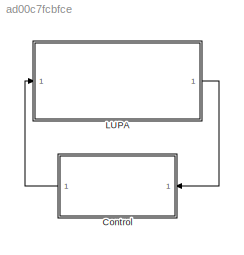
MODEL slx_ad00c7fcbfce
KIND model
CONFIG AbsTol = auto
CONFIG EnableMultiTasking = off
CONFIG FixedStep = 0.01
CONFIG MaxStep = 0.01
CONFIG MinStep = auto
CONFIG RelTol = 1e-3
CONFIG SampleTimeConstraint = Unconstrained
CONFIG SolverName = ode4
CONFIG StartTime = 0
CONFIG StopTime = 60
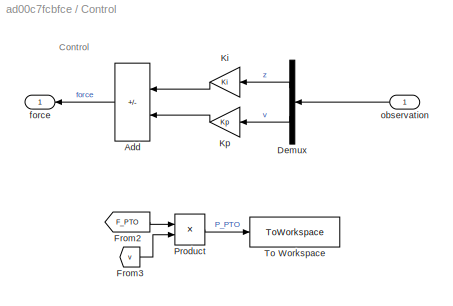
BLOCK [SubSystem] Control
BLOCK [Sum] Control/Add
  IconShape = rectangular
  Inputs = --
BLOCK [Demux] Control/Demux
  Outputs = 2
BLOCK [From] Control/From2
  GotoTag = F_PTO
  TagVisibility = global
BLOCK [From] Control/From3
  GotoTag = v
  TagVisibility = global
BLOCK [Gain] Control/Ki
  Gain = Ki
BLOCK [Gain] Control/Kp
  Gain = Kp
BLOCK [Product] Control/Product
BLOCK [ToWorkspace] Control/To Workspace
  FixptAsFi = on
  MaxDataPoints = inf
  SampleTime = -1
  SaveFormat = Timeseries
  VariableName = P_PTO
BLOCK [Outport] Control/force
BLOCK [Inport] Control/observation
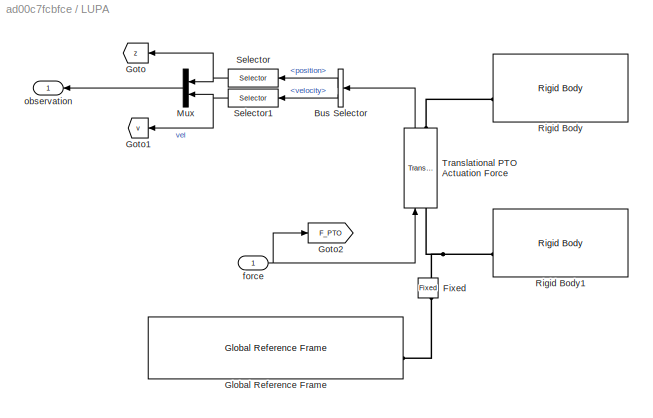
BLOCK [SubSystem] LUPA
BLOCK [BusSelector] LUPA/Bus Selector
  OutputSignals = position,velocity
BLOCK [Reference] LUPA/Fixed  REF=WECSim_Lib_Constraints/Fixed
  AttributesFormatString = %<constraint>
  NameLocation = right
  SourceBlock = WECSim_Lib_Constraints/Fixed
  SourceType = Constraints
BLOCK [Reference] LUPA/Global Reference Frame  REF=WECSim_Lib_Frames/Global Reference Frame
  SourceBlock = WECSim_Lib_Frames/Global Reference Frame
  SourceType = Frames
BLOCK [Goto] LUPA/Goto
  GotoTag = z
  TagVisibility = global
BLOCK [Goto] LUPA/Goto1
  GotoTag = v
  TagVisibility = global
BLOCK [Goto] LUPA/Goto2
  GotoTag = F_PTO
  TagVisibility = global
BLOCK [Mux] LUPA/Mux
  DisplayOption = bar
  Inputs = 2
BLOCK [Reference] LUPA/Rigid Body  REF=WECSim_Lib_Body_Elements/Rigid Body
  AttributesFormatString = %<body>
  SourceBlock = WECSim_Lib_Body_Elements/Rigid Body
  SourceType = Rigid Body
BLOCK [Reference] LUPA/Rigid Body1  REF=WECSim_Lib_Body_Elements/Rigid Body
  AttributesFormatString = %<body>
  SourceBlock = WECSim_Lib_Body_Elements/Rigid Body
  SourceType = Rigid Body
BLOCK [Selector] LUPA/Selector
  IndexOptions = Index vector (dialog)
  Indices = [3]
  InputPortWidth = 6
  OutputSizes = 1
BLOCK [Selector] LUPA/Selector1
  IndexOptions = Index vector (dialog)
  Indices = [3]
  InputPortWidth = 6
  OutputSizes = 1
BLOCK [Reference] LUPA/Translational PTO Actuation Force  REF=WECSim_Lib_PTOs/Translational PTO
Actuation Force
  AttributesFormatString = %<pto>
  NameLocation = right
  SourceBlock = WECSim_Lib_PTOs/Translational PTO\nActuation Force
  SourceType = PTO
BLOCK [Inport] LUPA/force
BLOCK [Outport] LUPA/observation
ANNOTATION Control: Control
LINE Control/Add:1 -> Control/force:1
LINE Control/Demux:1 -> Control/Ki:1
LINE Control/Demux:2 -> Control/Kp:1
LINE Control/From2:1 -> Control/Product:1
LINE Control/From3:1 -> Control/Product:2
LINE Control/Ki:1 -> Control/Add:1
LINE Control/Kp:1 -> Control/Add:2
LINE Control/Product:1 -> Control/To Workspace:1
LINE Control/observation:1 -> Control/Demux:1
LINE Control:1 -> LUPA:1
LINE LUPA/Bus Selector:1 -> LUPA/Selector:1
LINE LUPA/Bus Selector:2 -> LUPA/Selector1:1
LINE LUPA/Mux:1 -> LUPA/observation:1
NET LUPA/Selector1:1 -> LUPA/Goto1:1, LUPA/Mux:2
NET LUPA/Selector:1 -> LUPA/Goto:1, LUPA/Mux:1
LINE LUPA/Translational PTO Actuation Force:1 -> LUPA/Bus Selector:1
NET LUPA/force:1 -> LUPA/Goto2:1, LUPA/Translational PTO Actuation Force:1
LINE LUPA:1 -> Control:1
PLINE LUPA/Fixed:LConn1 -- LUPA/Global Reference Frame:RConn1
PNET net1: LUPA/Fixed:RConn1 -- LUPA/Rigid Body1:RConn1 -- LUPA/Translational PTO Actuation Force:LConn1
PLINE LUPA/Rigid Body:RConn1 -- LUPA/Translational PTO Actuation Force:RConn1
note: NET lines group one-source signal fan-out (src -> all destinations, sorted); 1:1 wires keep LINE; PNET lines group multi-terminal physical nets as a canonical sorted terminal list (undirected conserving connections); 2-terminal nets keep the pairwise PLINE form
